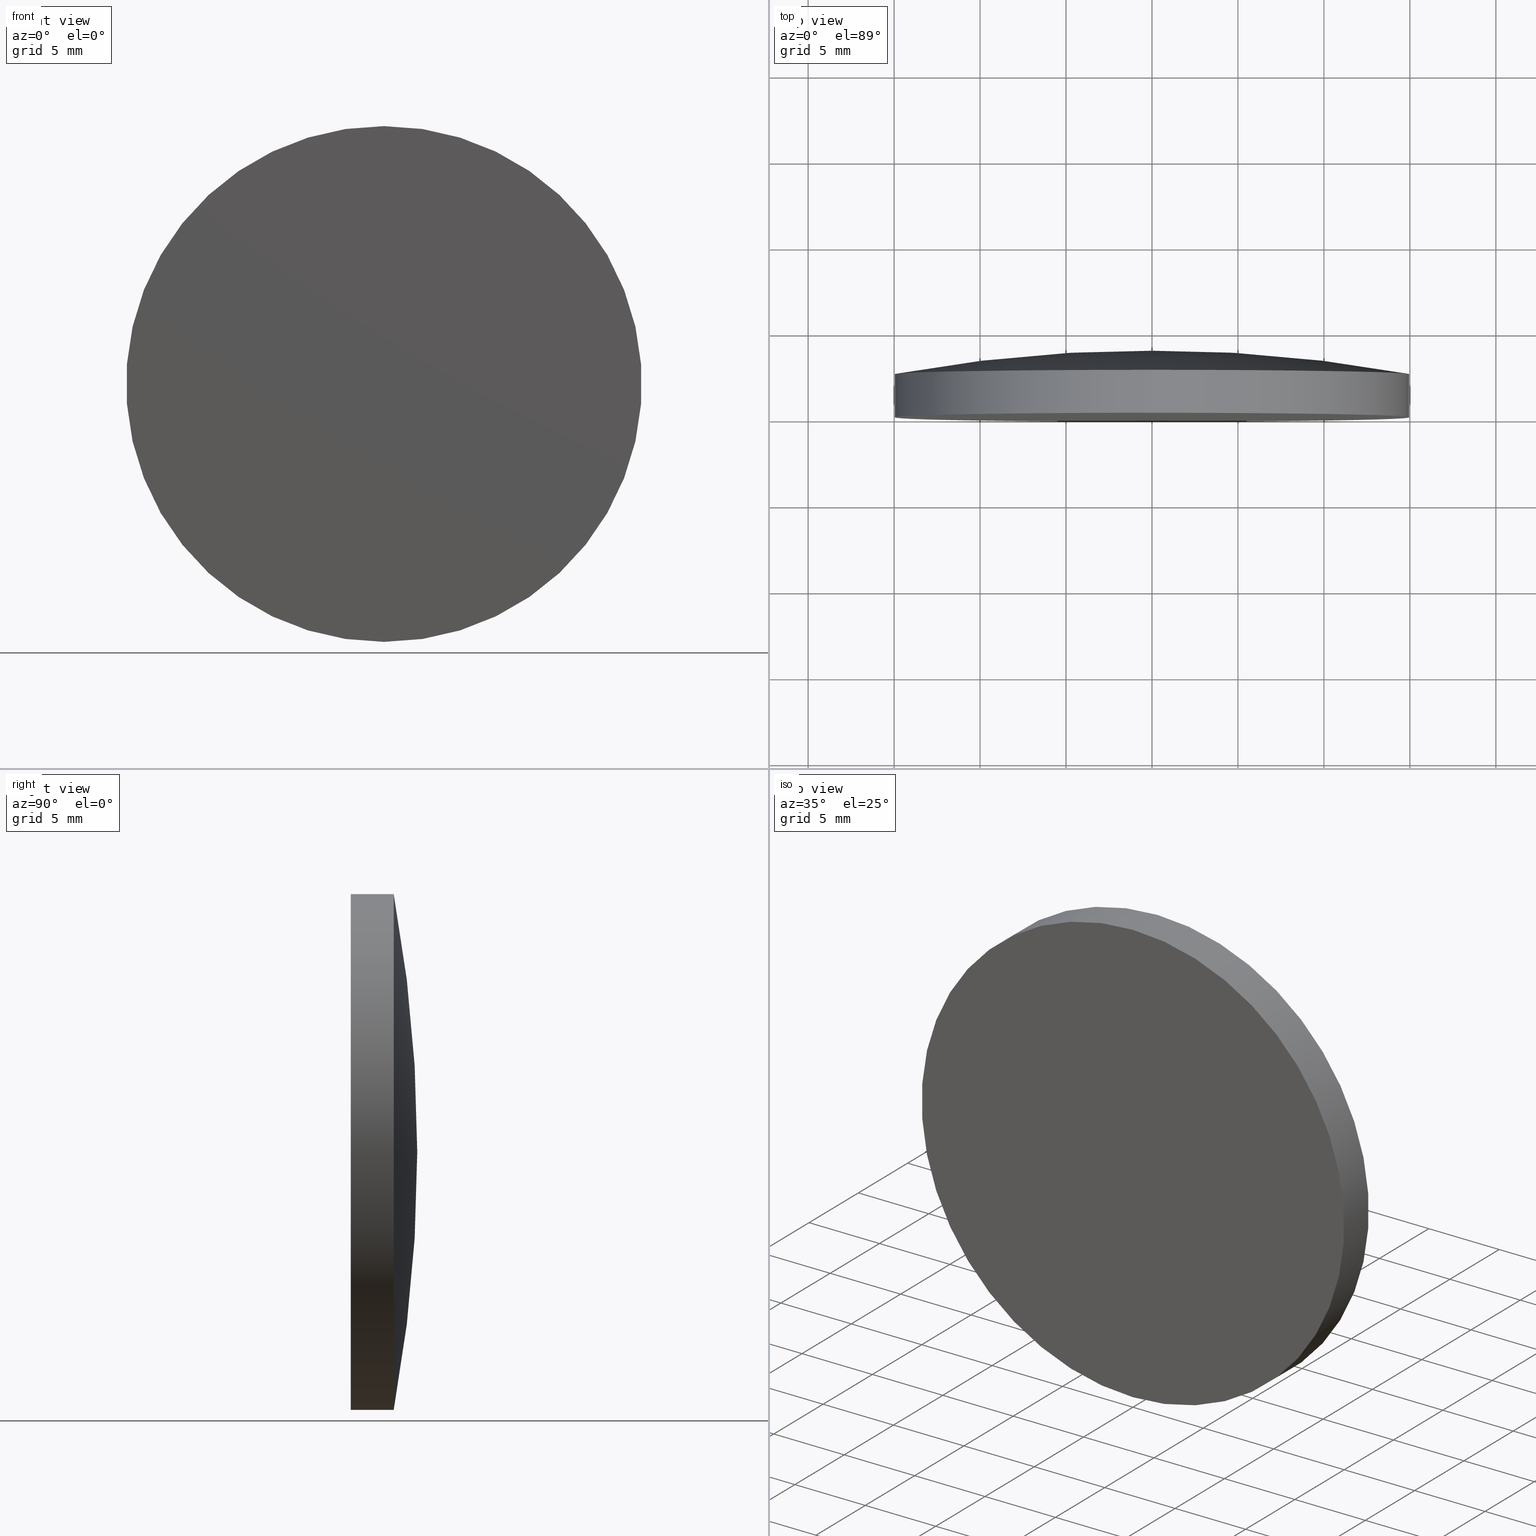
[diagram: canonical four-view strip — front | top / right | iso, engineering-drawing reading convention]
A machine part, canonical four-view strip (front | top / right | iso — engineering-drawing reading convention). The complete STEP part file that produces these views, byte-faithful:
ISO-10303-21;
HEADER;
FILE_DESCRIPTION (( 'STEP AP203' ),
    '1' );
FILE_NAME ('100600.STEP',
    '2024-05-10T02:03:28',
    ( '' ),
    ( '' ),
    'SwSTEP 2.0',
    'SolidWorks 2020',
    '' );
FILE_SCHEMA (( 'CONFIG_CONTROL_DESIGN' ));
ENDSEC;

DATA;
#1 = FACE_OUTER_BOUND ( 'NONE', #46, .T. ) ;
#2 = AXIS2_PLACEMENT_3D ( 'NONE', #161, #142, #58 ) ;
#3 = PERSON_AND_ORGANIZATION_ROLE ( 'classification_officer' ) ;
#4 = DATE_AND_TIME ( #151, #49 ) ;
#5 = APPROVAL ( #152, 'δָ��' ) ;
#6 = CALENDAR_DATE ( 2024, 10, 5 ) ;
#7 = VECTOR ( 'NONE', #29, 1000.000000000000000 ) ;
#8 = CALENDAR_DATE ( 2024, 10, 5 ) ;
#9 = MANIFOLD_SOLID_BREP ( '��ת1', #43 ) ;
#10 = CARTESIAN_POINT ( 'NONE',  ( 0.000000000000000000, 3.870000000000000107, 15.00000000000000000 ) ) ;
#11 = EDGE_LOOP ( 'NONE', ( #73, #128, #159, #160 ) ) ;
#12 = VERTEX_POINT ( 'NONE', #33 ) ;
#13 = EDGE_CURVE ( 'NONE', #31, #32, #100, .T. ) ;
#14 = EDGE_LOOP ( 'NONE', ( #61, #186, #110 ) ) ;
#15 = CARTESIAN_POINT ( 'NONE',  ( 0.000000000000000000, -78.74999833166459950, 0.000000000000000000 ) ) ;
#16 = CIRCLE ( 'NONE', #154, 15.00000000000000000 ) ;
#17 = SECURITY_CLASSIFICATION ( '', '', #104 ) ;
#18 = ADVANCED_BREP_SHAPE_REPRESENTATION ( '100600', ( #9, #170 ), #149 ) ;
#19 = DIRECTION ( 'NONE',  ( 0.000000000000000000, -0.000000000000000000, -1.000000000000000000 ) ) ;
#20 = DIRECTION ( 'NONE',  ( -0.000000000000000000, 1.000000000000000000, -0.000000000000000000 ) ) ;
#21 = DATE_AND_TIME ( #101, #87 ) ;
#22 = ADVANCED_FACE ( 'NONE', ( #197 ), #24, .T. ) ;
#23 = DIRECTION ( 'NONE',  ( 1.000000000000000000, 0.000000000000000000, 0.000000000000000000 ) ) ;
#24 = TOROIDAL_SURFACE ( 'NONE', #124, 0.01660348570795607687, 82.62000000000000455 ) ;
#25 = AXIS2_PLACEMENT_3D ( 'NONE', #15, #20, #63 ) ;
#26 = CC_DESIGN_SECURITY_CLASSIFICATION ( #17, ( #134 ) ) ;
#27 = PERSON_AND_ORGANIZATION ( #60, #175 ) ;
#28 = AXIS2_PLACEMENT_3D ( 'NONE', #201, #133, #50 ) ;
#29 = DIRECTION ( 'NONE',  ( -0.000000000000000000, 1.000000000000000000, -0.000000000000000000 ) ) ;
#30 = CC_DESIGN_PERSON_AND_ORGANIZATION_ASSIGNMENT ( #27, #166, ( #134 ) ) ;
#31 = VERTEX_POINT ( 'NONE', #44 ) ;
#32 = VERTEX_POINT ( 'NONE', #177 ) ;
#33 = CARTESIAN_POINT ( 'NONE',  ( 0.000000000000000000, 3.870000000000000107, 0.000000000000000000 ) ) ;
#34 = FACE_OUTER_BOUND ( 'NONE', #176, .T. ) ;
#35 = DIRECTION ( 'NONE',  ( 0.000000000000000000, 0.000000000000000000, 1.000000000000000000 ) ) ;
#36 = APPROVAL_ROLE ( '' ) ;
#37 = ADVANCED_FACE ( 'NONE', ( #34 ), #184, .T. ) ;
#38 = APPROVAL_STATUS ( 'not_yet_approved' ) ;
#39 = PERSON_AND_ORGANIZATION_ROLE ( 'design_supplier' ) ;
#40 = APPROVAL_DATE_TIME ( #168, #79 ) ;
#41 = CC_DESIGN_APPROVAL ( #5, ( #17 ) ) ;
#42 = CC_DESIGN_PERSON_AND_ORGANIZATION_ASSIGNMENT ( #88, #3, ( #17 ) ) ;
#43 = CLOSED_SHELL ( 'NONE', ( #112, #22, #95, #37, #178 ) ) ;
#44 = CARTESIAN_POINT ( 'NONE',  ( 1.836970198721029589E-15, -1.734723475976807094E-15, -15.00000000000000000 ) ) ;
#45 = DIRECTION ( 'NONE',  ( -0.000000000000000000, 1.000000000000000000, -0.000000000000000000 ) ) ;
#46 = EDGE_LOOP ( 'NONE', ( #144, #131, #196 ) ) ;
#47 = AXIS2_PLACEMENT_3D ( 'NONE', #91, #188, #19 ) ;
#48 = DIRECTION ( 'NONE',  ( -0.000000000000000000, 1.000000000000000000, -0.000000000000000000 ) ) ;
#49 = LOCAL_TIME ( 10, 3, 28.00000000000000000, #66 ) ;
#50 = DIRECTION ( 'NONE',  ( 0.000000000000000000, 0.000000000000000000, 1.000000000000000000 ) ) ;
#51 = EDGE_CURVE ( 'NONE', #31, #72, #158, .T. ) ;
#52 =( NAMED_UNIT ( * ) SI_UNIT ( $, .STERADIAN. ) SOLID_ANGLE_UNIT ( ) );
#53 = COORDINATED_UNIVERSAL_TIME_OFFSET ( 8, 0, .AHEAD. ) ;
#54 = CIRCLE ( 'NONE', #174, 15.00000000000000000 ) ;
#55 = LOCAL_TIME ( 10, 3, 28.00000000000000000, #137 ) ;
#56 = APPROVAL ( #38, 'δָ��' ) ;
#57 = CC_DESIGN_DATE_AND_TIME_ASSIGNMENT ( #4, #67, ( #17 ) ) ;
#58 = DIRECTION ( 'NONE',  ( 0.000000000000000000, 0.000000000000000000, 1.000000000000000000 ) ) ;
#59 = DIRECTION ( 'NONE',  ( 0.000000000000000000, 0.000000000000000000, 1.000000000000000000 ) ) ;
#60 = PERSON ( 'δָ��', 'δָ��', 'δָ��', ('δָ��'), ('δָ��'), ('δָ��') ) ;
#61 = ORIENTED_EDGE ( 'NONE', *, *, #71, .T. ) ;
#62 = ORIENTED_EDGE ( 'NONE', *, *, #199, .T. ) ;
#63 = DIRECTION ( 'NONE',  ( 0.000000000000000000, 0.000000000000000000, 1.000000000000000000 ) ) ;
#64 = FACE_OUTER_BOUND ( 'NONE', #75, .T. ) ;
#65 = CIRCLE ( 'NONE', #183, 15.00000000000000000 ) ;
#66 = COORDINATED_UNIVERSAL_TIME_OFFSET ( 8, 0, .AHEAD. ) ;
#67 = DATE_TIME_ROLE ( 'classification_date' ) ;
#68 = APPROVAL_ROLE ( '' ) ;
#69 = PERSON_AND_ORGANIZATION ( #60, #175 ) ;
#70 = PERSON_AND_ORGANIZATION_ROLE ( 'design_owner' ) ;
#71 = EDGE_CURVE ( 'NONE', #94, #32, #54, .T. ) ;
#72 = VERTEX_POINT ( 'NONE', #164 ) ;
#73 = ORIENTED_EDGE ( 'NONE', *, *, #129, .T. ) ;
#74 = SHAPE_DEFINITION_REPRESENTATION ( #113, #18 ) ;
#75 = EDGE_LOOP ( 'NONE', ( #90, #76, #62, #173 ) ) ;
#76 = ORIENTED_EDGE ( 'NONE', *, *, #51, .T. ) ;
#77 = APPROVAL_DATE_TIME ( #98, #5 ) ;
#78 = EDGE_CURVE ( 'NONE', #94, #12, #111, .T. ) ;
#79 = APPROVAL ( #122, 'δָ��' ) ;
#80 = CARTESIAN_POINT ( 'NONE',  ( 2.033340562693723258E-18, -78.74999833166459950, -0.01660348570795607687 ) ) ;
#81 = DIRECTION ( 'NONE',  ( -0.000000000000000000, 1.000000000000000000, -0.000000000000000000 ) ) ;
#82 = CARTESIAN_POINT ( 'NONE',  ( 0.000000000000000000, 3.870000000000000107, 0.000000000000000000 ) ) ;
#83 = DIRECTION ( 'NONE',  ( 0.000000000000000000, 0.000000000000000000, 1.000000000000000000 ) ) ;
#84 = TOROIDAL_SURFACE ( 'NONE', #25, 0.01660348570795607687, 82.62000000000000455 ) ;
#85 = PERSON_AND_ORGANIZATION ( #60, #175 ) ;
#86 = COORDINATED_UNIVERSAL_TIME_OFFSET ( 8, 0, .AHEAD. ) ;
#87 = LOCAL_TIME ( 10, 3, 28.00000000000000000, #102 ) ;
#88 = PERSON_AND_ORGANIZATION ( #60, #175 ) ;
#89 = CC_DESIGN_APPROVAL ( #79, ( #187 ) ) ;
#90 = ORIENTED_EDGE ( 'NONE', *, *, #13, .F. ) ;
#91 = CARTESIAN_POINT ( 'NONE',  ( 0.000000000000000000, -9.184850993605147944E-16, 0.000000000000000000 ) ) ;
#92 = CIRCLE ( 'NONE', #162, 82.62000000000000455 ) ;
#93 = CC_DESIGN_APPROVAL ( #56, ( #134 ) ) ;
#94 = VERTEX_POINT ( 'NONE', #163 ) ;
#95 = ADVANCED_FACE ( 'NONE', ( #1 ), #84, .T. ) ;
#96 = UNCERTAINTY_MEASURE_WITH_UNIT (LENGTH_MEASURE( 1.000000000000000082E-05 ), #167, 'distance_accuracy_value', 'NONE');
#97 = CARTESIAN_POINT ( 'NONE',  ( 0.000000000000000000, -78.74999833166459950, 0.01660348570795607687 ) ) ;
#98 = DATE_AND_TIME ( #192, #55 ) ;
#99 = DIRECTION ( 'NONE',  ( 0.000000000000000000, 0.000000000000000000, 1.000000000000000000 ) ) ;
#100 = LINE ( 'NONE', #109, #7 ) ;
#101 = CALENDAR_DATE ( 2024, 10, 5 ) ;
#102 = COORDINATED_UNIVERSAL_TIME_OFFSET ( 8, 0, .AHEAD. ) ;
#103 = APPLICATION_CONTEXT ( 'configuration controlled 3d designs of mechanical parts and assemblies' ) ;
#104 = SECURITY_CLASSIFICATION_LEVEL ( 'unclassified' ) ;
#105 = DATE_AND_TIME ( #6, #180 ) ;
#106 = EDGE_CURVE ( 'NONE', #32, #94, #16, .T. ) ;
#107 = PRODUCT ( '100600', '100600', '', ( #190 ) ) ;
#108 = LOCAL_TIME ( 10, 3, 28.00000000000000000, #86 ) ;
#109 = CARTESIAN_POINT ( 'NONE',  ( 1.836970198721029589E-15, 3.870000000000000107, -15.00000000000000000 ) ) ;
#110 = ORIENTED_EDGE ( 'NONE', *, *, #78, .F. ) ;
#111 = CIRCLE ( 'NONE', #194, 82.62000000000000455 ) ;
#112 = ADVANCED_FACE ( 'NONE', ( #171 ), #185, .T. ) ;
#113 = PRODUCT_DEFINITION_SHAPE ( 'NONE', 'NONE',  #187 ) ;
#114 = DIRECTION ( 'NONE',  ( -1.000000000000000000, 0.000000000000000000, 0.000000000000000000 ) ) ;
#115 = APPLICATION_CONTEXT ( 'configuration controlled 3d designs of mechanical parts and assemblies' ) ;
#116 = CARTESIAN_POINT ( 'NONE',  ( 0.000000000000000000, 2.499999999999998224, 0.000000000000000000 ) ) ;
#117 = LINE ( 'NONE', #10, #119 ) ;
#118 = CC_DESIGN_PERSON_AND_ORGANIZATION_ASSIGNMENT ( #85, #39, ( #134 ) ) ;
#119 = VECTOR ( 'NONE', #121, 1000.000000000000000 ) ;
#120 = PERSON_AND_ORGANIZATION ( #60, #175 ) ;
#121 = DIRECTION ( 'NONE',  ( -0.000000000000000000, 1.000000000000000000, -0.000000000000000000 ) ) ;
#122 = APPROVAL_STATUS ( 'not_yet_approved' ) ;
#123 = PERSON_AND_ORGANIZATION ( #60, #175 ) ;
#124 = AXIS2_PLACEMENT_3D ( 'NONE', #148, #81, #59 ) ;
#125 = APPROVAL_PERSON_ORGANIZATION ( #69, #79, #181 ) ;
#126 = DIRECTION ( 'NONE',  ( 0.000000000000000000, 0.000000000000000000, 1.000000000000000000 ) ) ;
#127 = DIRECTION ( 'NONE',  ( -0.000000000000000000, 1.000000000000000000, -0.000000000000000000 ) ) ;
#128 = ORIENTED_EDGE ( 'NONE', *, *, #13, .T. ) ;
#129 = EDGE_CURVE ( 'NONE', #72, #31, #65, .T. ) ;
#130 = PRODUCT_RELATED_PRODUCT_CATEGORY ( 'detail', '', ( #107 ) ) ;
#131 = ORIENTED_EDGE ( 'NONE', *, *, #106, .T. ) ;
#132 = DIRECTION ( 'NONE',  ( -0.000000000000000000, 1.000000000000000000, -0.000000000000000000 ) ) ;
#133 = DIRECTION ( 'NONE',  ( -0.000000000000000000, 1.000000000000000000, -0.000000000000000000 ) ) ;
#134 = PRODUCT_DEFINITION_FORMATION_WITH_SPECIFIED_SOURCE ( '�κ�', '', #107, .NOT_KNOWN. ) ;
#135 = DIRECTION ( 'NONE',  ( 1.224646799147353207E-16, 0.000000000000000000, -1.000000000000000000 ) ) ;
#136 = DATE_TIME_ROLE ( 'creation_date' ) ;
#137 = COORDINATED_UNIVERSAL_TIME_OFFSET ( 8, 0, .AHEAD. ) ;
#138 = PERSON_AND_ORGANIZATION_ROLE ( 'creator' ) ;
#139 = PERSON_AND_ORGANIZATION ( #60, #175 ) ;
#140 = APPROVAL_PERSON_ORGANIZATION ( #120, #5, #68 ) ;
#141 = CC_DESIGN_PERSON_AND_ORGANIZATION_ASSIGNMENT ( #123, #70, ( #107 ) ) ;
#142 = DIRECTION ( 'NONE',  ( -0.000000000000000000, 1.000000000000000000, -0.000000000000000000 ) ) ;
#143 = ORIENTED_EDGE ( 'NONE', *, *, #129, .F. ) ;
#144 = ORIENTED_EDGE ( 'NONE', *, *, #155, .F. ) ;
#145 = APPROVAL_PERSON_ORGANIZATION ( #139, #56, #36 ) ;
#146 = CYLINDRICAL_SURFACE ( 'NONE', #28, 15.00000000000000000 ) ;
#147 = DIRECTION ( 'NONE',  ( 0.000000000000000000, 0.000000000000000000, 1.000000000000000000 ) ) ;
#148 = CARTESIAN_POINT ( 'NONE',  ( 0.000000000000000000, -78.74999833166459950, 0.000000000000000000 ) ) ;
#149 =( GEOMETRIC_REPRESENTATION_CONTEXT ( 3 ) GLOBAL_UNCERTAINTY_ASSIGNED_CONTEXT ( ( #96 ) ) GLOBAL_UNIT_ASSIGNED_CONTEXT ( ( #167, #193, #52 ) ) REPRESENTATION_CONTEXT ( 'NONE', 'WORKASPACE' ) );
#150 = APPLICATION_PROTOCOL_DEFINITION ( 'international standard', 'config_control_design', 1994, #115 ) ;
#151 = CALENDAR_DATE ( 2024, 10, 5 ) ;
#152 = APPROVAL_STATUS ( 'not_yet_approved' ) ;
#153 = CARTESIAN_POINT ( 'NONE',  ( 0.000000000000000000, 0.000000000000000000, 0.000000000000000000 ) ) ;
#154 = AXIS2_PLACEMENT_3D ( 'NONE', #116, #127, #147 ) ;
#155 = EDGE_CURVE ( 'NONE', #32, #12, #92, .T. ) ;
#156 = CARTESIAN_POINT ( 'NONE',  ( 0.000000000000000000, 2.499999999999998224, 0.000000000000000000 ) ) ;
#157 = CARTESIAN_POINT ( 'NONE',  ( 0.000000000000000000, -1.734723475976807094E-15, 0.000000000000000000 ) ) ;
#158 = CIRCLE ( 'NONE', #2, 15.00000000000000000 ) ;
#159 = ORIENTED_EDGE ( 'NONE', *, *, #71, .F. ) ;
#160 = ORIENTED_EDGE ( 'NONE', *, *, #199, .F. ) ;
#161 = CARTESIAN_POINT ( 'NONE',  ( 0.000000000000000000, -1.734723475976807094E-15, 0.000000000000000000 ) ) ;
#162 = AXIS2_PLACEMENT_3D ( 'NONE', #80, #172, #135 ) ;
#163 = CARTESIAN_POINT ( 'NONE',  ( 0.000000000000000000, 2.500000000000000444, 15.00000000000000355 ) ) ;
#164 = CARTESIAN_POINT ( 'NONE',  ( 0.000000000000000000, -1.734723475976807094E-15, 15.00000000000000000 ) ) ;
#165 = CC_DESIGN_PERSON_AND_ORGANIZATION_ASSIGNMENT ( #182, #138, ( #187 ) ) ;
#166 = PERSON_AND_ORGANIZATION_ROLE ( 'creator' ) ;
#167 =( LENGTH_UNIT ( ) NAMED_UNIT ( * ) SI_UNIT ( .MILLI., .METRE. ) );
#168 = DATE_AND_TIME ( #8, #108 ) ;
#169 = APPROVAL_DATE_TIME ( #21, #56 ) ;
#170 = AXIS2_PLACEMENT_3D ( 'NONE', #153, #83, #23 ) ;
#171 = FACE_OUTER_BOUND ( 'NONE', #11, .T. ) ;
#172 = DIRECTION ( 'NONE',  ( 1.000000000000000000, 0.000000000000000000, 1.224646799147353207E-16 ) ) ;
#173 = ORIENTED_EDGE ( 'NONE', *, *, #106, .F. ) ;
#174 = AXIS2_PLACEMENT_3D ( 'NONE', #156, #48, #35 ) ;
#175 = ORGANIZATION ( 'δָ��', 'δָ��', '' ) ;
#176 = EDGE_LOOP ( 'NONE', ( #143, #198 ) ) ;
#177 = CARTESIAN_POINT ( 'NONE',  ( 1.836970198721030378E-15, 2.500000000000000444, -15.00000000000000355 ) ) ;
#178 = ADVANCED_FACE ( 'NONE', ( #64 ), #146, .T. ) ;
#179 = DIRECTION ( 'NONE',  ( 0.000000000000000000, 0.000000000000000000, 1.000000000000000000 ) ) ;
#180 = LOCAL_TIME ( 10, 3, 28.00000000000000000, #53 ) ;
#181 = APPROVAL_ROLE ( '' ) ;
#182 = PERSON_AND_ORGANIZATION ( #60, #175 ) ;
#183 = AXIS2_PLACEMENT_3D ( 'NONE', #157, #45, #99 ) ;
#184 = PLANE ( 'NONE',  #47 ) ;
#185 = CYLINDRICAL_SURFACE ( 'NONE', #200, 15.00000000000000000 ) ;
#186 = ORIENTED_EDGE ( 'NONE', *, *, #155, .T. ) ;
#187 = PRODUCT_DEFINITION ( 'δ֪', '', #134, #195 ) ;
#188 = DIRECTION ( 'NONE',  ( 0.000000000000000000, -1.000000000000000000, 0.000000000000000000 ) ) ;
#189 = CC_DESIGN_DATE_AND_TIME_ASSIGNMENT ( #105, #136, ( #187 ) ) ;
#190 = MECHANICAL_CONTEXT ( 'NONE', #115, 'mechanical' ) ;
#191 = APPLICATION_PROTOCOL_DEFINITION ( 'international standard', 'config_control_design', 1994, #103 ) ;
#192 = CALENDAR_DATE ( 2024, 10, 5 ) ;
#193 =( NAMED_UNIT ( * ) PLANE_ANGLE_UNIT ( ) SI_UNIT ( $, .RADIAN. ) );
#194 = AXIS2_PLACEMENT_3D ( 'NONE', #97, #114, #179 ) ;
#195 = DESIGN_CONTEXT ( 'detailed design', #103, 'design' ) ;
#196 = ORIENTED_EDGE ( 'NONE', *, *, #78, .T. ) ;
#197 = FACE_OUTER_BOUND ( 'NONE', #14, .T. ) ;
#198 = ORIENTED_EDGE ( 'NONE', *, *, #51, .F. ) ;
#199 = EDGE_CURVE ( 'NONE', #72, #94, #117, .T. ) ;
#200 = AXIS2_PLACEMENT_3D ( 'NONE', #82, #132, #126 ) ;
#201 = CARTESIAN_POINT ( 'NONE',  ( 0.000000000000000000, 3.870000000000000107, 0.000000000000000000 ) ) ;
ENDSEC;
END-ISO-10303-21;
